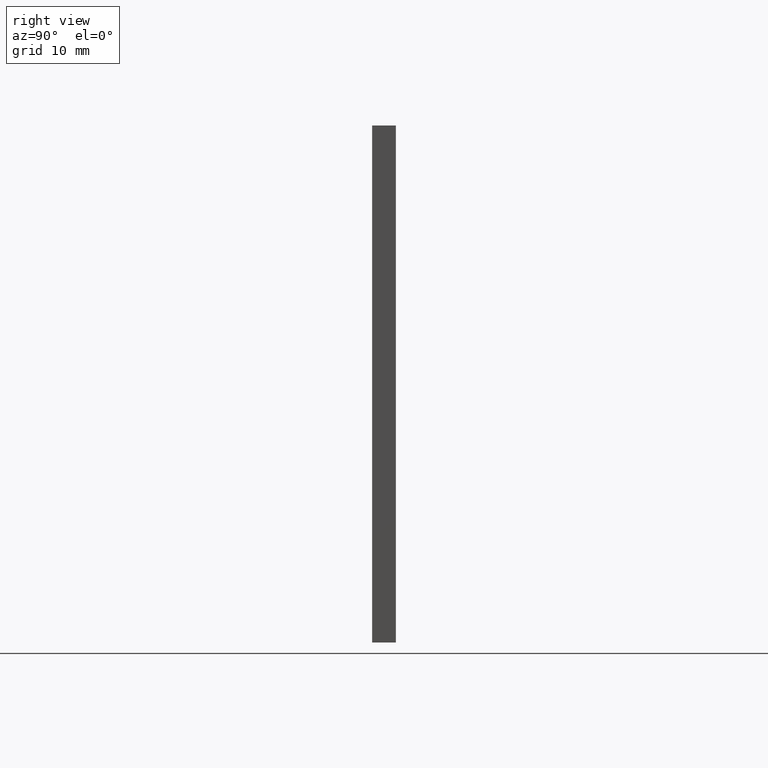
[diagram: clean part render]
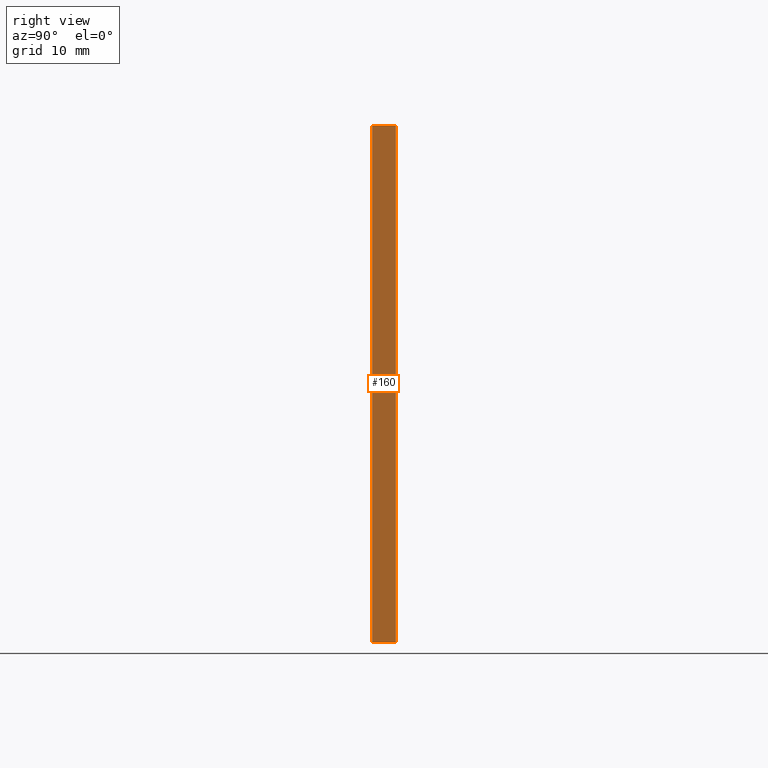
[diagram: same view with one face highlighted and labeled with its STEP entity id]
A machine part, right view. The second image highlights one B-rep face of the part: STEP entity #160.
In plain terms, the highlighted planar face has unit normal (-1, 0, 0).
Its self-contained STEP definition (entity closure, byte-faithful):
#3 = AXIS2_PLACEMENT_3D ( 'NONE', #125, #147, #182 ) ;
#6 = VERTEX_POINT ( 'NONE', #197 ) ;
#8 = EDGE_LOOP ( 'NONE', ( #187, #40, #183, #45 ) ) ;
#10 = LINE ( 'NONE', #79, #86 ) ;
#16 = VECTOR ( 'NONE', #91, 1000.000000000000000 ) ;
#20 = CARTESIAN_POINT ( 'NONE',  ( 24.99999999999999600, 0.0000000000000000000, 25.00000000000000400 ) ) ;
#26 = VERTEX_POINT ( 'NONE', #170 ) ;
#31 = DIRECTION ( 'NONE',  ( -0.0000000000000000000, -1.000000000000000000, -0.0000000000000000000 ) ) ;
#40 = ORIENTED_EDGE ( 'NONE', *, *, #145, .F. ) ;
#41 = FACE_OUTER_BOUND ( 'NONE', #8, .T. ) ;
#45 = ORIENTED_EDGE ( 'NONE', *, *, #128, .T. ) ;
#48 = CARTESIAN_POINT ( 'NONE',  ( 24.99999999999999600, 2.299999999999999800, 25.00000000000000400 ) ) ;
#51 = VERTEX_POINT ( 'NONE', #151 ) ;
#67 = CARTESIAN_POINT ( 'NONE',  ( 24.99999999999999600, 0.0000000000000000000, 25.00000000000000400 ) ) ;
#79 = CARTESIAN_POINT ( 'NONE',  ( 24.99999999999999600, 2.299999999999999800, -24.99999999999999600 ) ) ;
#84 = EDGE_CURVE ( 'NONE', #115, #51, #112, .T. ) ;
#86 = VECTOR ( 'NONE', #31, 1000.000000000000000 ) ;
#91 = DIRECTION ( 'NONE',  ( -0.0000000000000000000, -1.000000000000000000, -0.0000000000000000000 ) ) ;
#106 = DIRECTION ( 'NONE',  ( 0.0000000000000000000, 0.0000000000000000000, -1.000000000000000000 ) ) ;
#108 = VECTOR ( 'NONE', #106, 1000.000000000000000 ) ;
#111 = PLANE ( 'NONE',  #3 ) ;
#112 = LINE ( 'NONE', #20, #155 ) ;
#115 = VERTEX_POINT ( 'NONE', #67 ) ;
#125 = CARTESIAN_POINT ( 'NONE',  ( 24.99999999999999600, 2.299999999999999800, 25.00000000000000400 ) ) ;
#128 = EDGE_CURVE ( 'NONE', #26, #115, #167, .T. ) ;
#145 = EDGE_CURVE ( 'NONE', #6, #51, #10, .T. ) ;
#146 = DIRECTION ( 'NONE',  ( 0.0000000000000000000, 0.0000000000000000000, -1.000000000000000000 ) ) ;
#147 = DIRECTION ( 'NONE',  ( -1.000000000000000000, 0.0000000000000000000, 0.0000000000000000000 ) ) ;
#151 = CARTESIAN_POINT ( 'NONE',  ( 24.99999999999999600, 0.0000000000000000000, -24.99999999999999600 ) ) ;
#155 = VECTOR ( 'NONE', #146, 1000.000000000000000 ) ;
#160 = ADVANCED_FACE ( 'NONE', ( #41 ), #111, .F. ) ;
#167 = LINE ( 'NONE', #200, #16 ) ;
#170 = CARTESIAN_POINT ( 'NONE',  ( 24.99999999999999600, 2.299999999999999800, 25.00000000000000400 ) ) ;
#172 = EDGE_CURVE ( 'NONE', #26, #6, #186, .T. ) ;
#182 = DIRECTION ( 'NONE',  ( 0.0000000000000000000, 0.0000000000000000000, 1.000000000000000000 ) ) ;
#183 = ORIENTED_EDGE ( 'NONE', *, *, #172, .F. ) ;
#186 = LINE ( 'NONE', #48, #108 ) ;
#187 = ORIENTED_EDGE ( 'NONE', *, *, #84, .T. ) ;
#197 = CARTESIAN_POINT ( 'NONE',  ( 24.99999999999999600, 2.299999999999999800, -24.99999999999999600 ) ) ;
#200 = CARTESIAN_POINT ( 'NONE',  ( 24.99999999999999600, 2.299999999999999800, 25.00000000000000400 ) ) ;